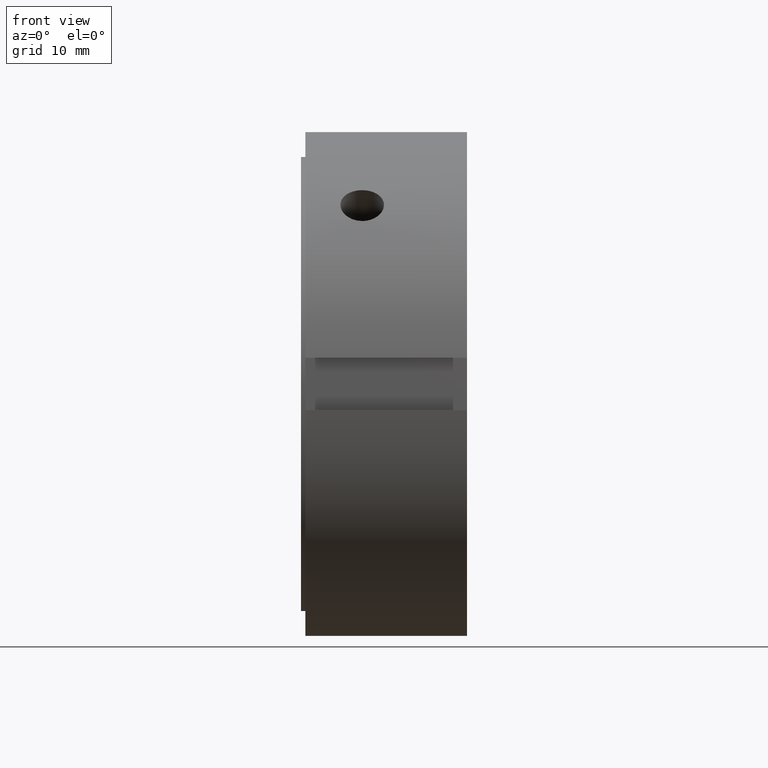
[diagram: clean part render]
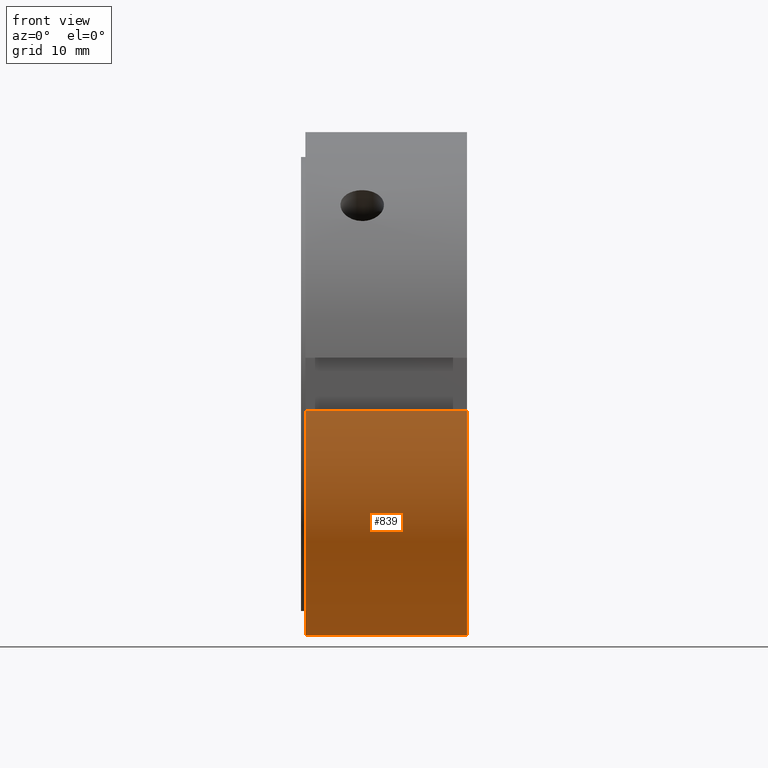
[diagram: same view with one face highlighted and labeled with its STEP entity id]
A machine part, front view. The second image highlights one B-rep face of the part: STEP entity #839.
In plain terms, the highlighted cylindrical surface (partial cylindrical patch) has radius 29 mm, axis along (1, 0, 0).
Its self-contained STEP definition (entity closure, byte-faithful):
#421=CARTESIAN_POINT('',(0.499999999999994,-3.000000000000004,-28.844410203711917));
#422=VERTEX_POINT('',#421);
#437=CARTESIAN_POINT('',(18.999999999999993,-3.000000000000004,-28.844410203711917));
#438=VERTEX_POINT('',#437);
#445=CARTESIAN_POINT('',(0.499999999999993,-3.000000000000005,-28.844410203711917));
#446=DIRECTION('',(1.0,0.0,0.0));
#447=VECTOR('',#446,18.5);
#448=LINE('',#445,#447);
#449=EDGE_CURVE('',#422,#438,#448,.T.);
#561=CARTESIAN_POINT('',(0.499999999999994,-28.844410203711917,-2.999999999999996));
#562=VERTEX_POINT('',#561);
#571=CARTESIAN_POINT('',(18.999999999999993,-28.844410203711917,-2.999999999999996));
#572=VERTEX_POINT('',#571);
#573=CARTESIAN_POINT('',(18.999999999999993,-28.844410203711917,-2.999999999999996));
#574=DIRECTION('',(-1.0,0.0,0.0));
#575=VECTOR('',#574,18.5);
#576=LINE('',#573,#575);
#577=EDGE_CURVE('',#572,#562,#576,.T.);
#816=CARTESIAN_POINT('',(9.749999999999995,0.0,0.0));
#817=DIRECTION('',(1.0,0.0,0.0));
#818=DIRECTION('',(0.0,1.0,0.0));
#819=AXIS2_PLACEMENT_3D('',#816,#817,#818);
#820=CYLINDRICAL_SURFACE('',#819,29.000000000000004);
#821=ORIENTED_EDGE('',*,*,#449,.T.);
#822=CARTESIAN_POINT('',(18.999999999999993,0.0,0.0));
#823=DIRECTION('',(1.0,0.0,0.0));
#824=DIRECTION('',(0.0,1.0,0.0));
#825=AXIS2_PLACEMENT_3D('',#822,#823,#824);
#826=CIRCLE('',#825,29.000000000000004);
#827=EDGE_CURVE('',#572,#438,#826,.T.);
#828=ORIENTED_EDGE('',*,*,#827,.F.);
#829=ORIENTED_EDGE('',*,*,#577,.T.);
#830=CARTESIAN_POINT('',(0.499999999999994,0.0,0.0));
#831=DIRECTION('',(1.0,0.0,0.0));
#832=DIRECTION('',(0.0,1.0,0.0));
#833=AXIS2_PLACEMENT_3D('',#830,#831,#832);
#834=CIRCLE('',#833,29.0);
#835=EDGE_CURVE('',#562,#422,#834,.T.);
#836=ORIENTED_EDGE('',*,*,#835,.T.);
#837=EDGE_LOOP('',(#821,#828,#829,#836));
#838=FACE_OUTER_BOUND('',#837,.T.);
#839=ADVANCED_FACE('',(#838),#820,.T.);